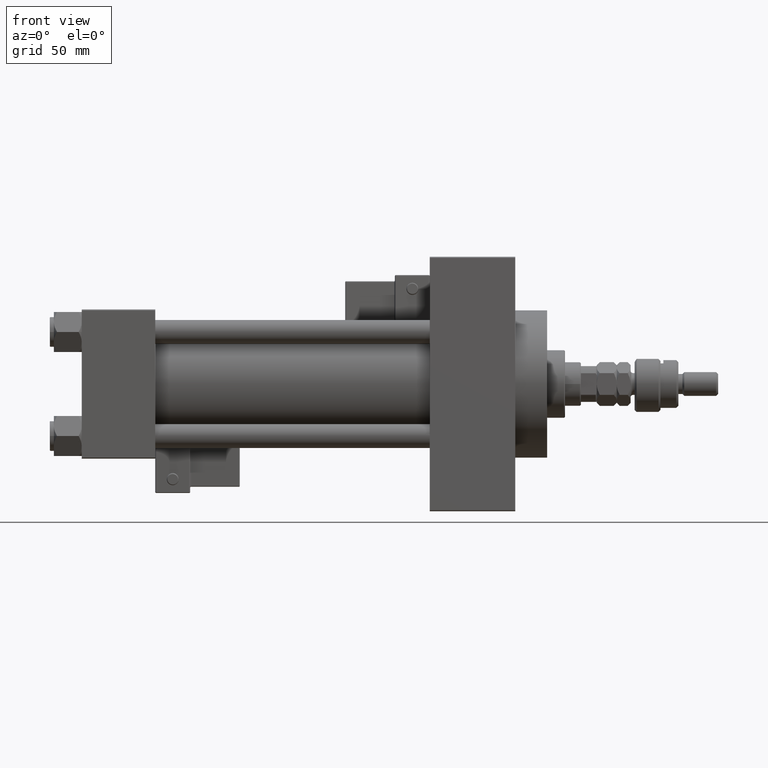
[diagram: clean part render]
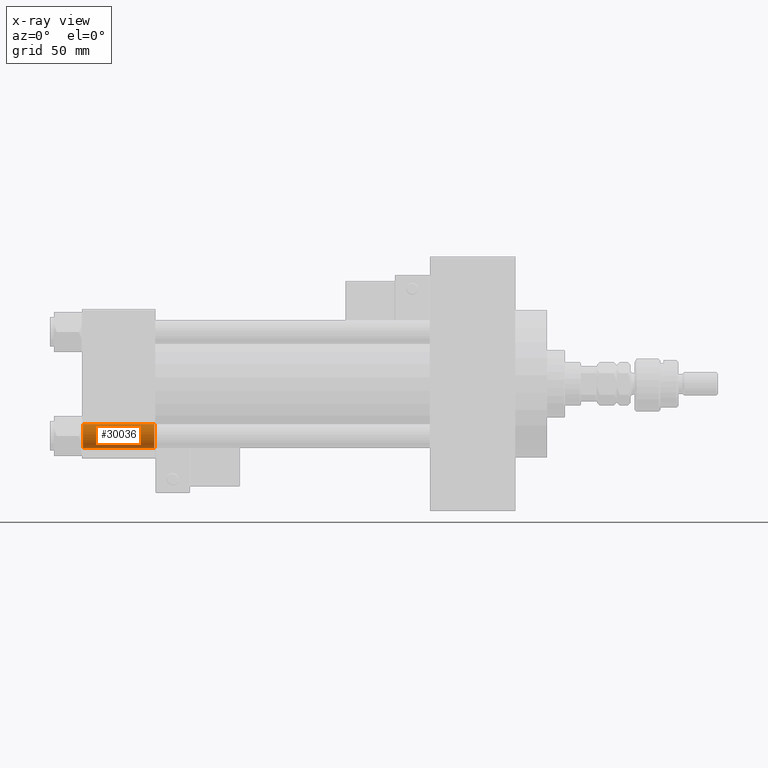
[diagram: x-ray — body ghosted, one internal face saturated and labeled with its STEP entity id]
A machine part, front view, then the same camera in x-ray: the body is ghosted and one INTERNAL B-rep face — a face not visible from any outside direction — is saturated and labeled: STEP entity #30036.
In plain terms, the highlighted cylindrical surface (edge-blend (fillet) strip) has radius 6 mm, axis along (-1, -0, -0).
Its self-contained STEP definition (entity closure, byte-faithful):
#1450 = AXIS2_PLACEMENT_3D ( 'NONE', #16453, #12218, #3464 ) ;
#2177 = AXIS2_PLACEMENT_3D ( 'NONE', #41709, #50196, #17059 ) ;
#3464 = DIRECTION ( 'NONE',  ( 0.000000000000000000, 0.000000000000000000, 1.000000000000000000 ) ) ;
#4819 = CIRCLE ( 'NONE', #1450, 6.000000000000001776 ) ;
#7270 = CIRCLE ( 'NONE', #2177, 6.000000000000001776 ) ;
#9847 = CYLINDRICAL_SURFACE ( 'NONE', #43773, 6.000000000000001776 ) ;
#11173 = DIRECTION ( 'NONE',  ( -1.000000000000000000, -0.000000000000000000, -0.000000000000000000 ) ) ;
#11768 = CARTESIAN_POINT ( 'NONE',  ( 0.5000000000000213163, 26.14999999999999858, -32.15000000000000568 ) ) ;
#12218 = DIRECTION ( 'NONE',  ( -1.000000000000000000, 0.000000000000000000, 0.000000000000000000 ) ) ;
#15097 = EDGE_LOOP ( 'NONE', ( #23826, #37031, #15108, #51021 ) ) ;
#15108 = ORIENTED_EDGE ( 'NONE', *, *, #30209, .T. ) ;
#16449 = VERTEX_POINT ( 'NONE', #50597 ) ;
#16453 = CARTESIAN_POINT ( 'NONE',  ( 0.5000000000000213163, 26.14999999999999858, -26.15000000000000213 ) ) ;
#17008 = CARTESIAN_POINT ( 'NONE',  ( 37.00000000000000711, 26.14999999999999858, -20.15000000000000213 ) ) ;
#17059 = DIRECTION ( 'NONE',  ( 0.000000000000000000, 0.000000000000000000, 1.000000000000000000 ) ) ;
#18420 = CARTESIAN_POINT ( 'NONE',  ( 36.50000000000003553, 26.14999999999999858, -32.15000000000000568 ) ) ;
#20910 = VERTEX_POINT ( 'NONE', #43576 ) ;
#22573 = DIRECTION ( 'NONE',  ( 0.000000000000000000, 0.000000000000000000, 1.000000000000000000 ) ) ;
#23826 = ORIENTED_EDGE ( 'NONE', *, *, #52365, .T. ) ;
#26060 = DIRECTION ( 'NONE',  ( -1.000000000000000000, -0.000000000000000000, -0.000000000000000000 ) ) ;
#26858 = LINE ( 'NONE', #34845, #42690 ) ;
#29835 = VERTEX_POINT ( 'NONE', #11768 ) ;
#30036 = ADVANCED_FACE ( 'NONE', ( #46194 ), #9847, .F. ) ;
#30209 = EDGE_CURVE ( 'NONE', #29835, #20910, #4819, .T. ) ;
#32433 = LINE ( 'NONE', #17008, #33496 ) ;
#33229 = DIRECTION ( 'NONE',  ( -1.000000000000000000, -0.000000000000000000, -0.000000000000000000 ) ) ;
#33496 = VECTOR ( 'NONE', #33229, 1000.000000000000000 ) ;
#34845 = CARTESIAN_POINT ( 'NONE',  ( 37.00000000000000711, 26.14999999999999858, -32.15000000000000568 ) ) ;
#35063 = CARTESIAN_POINT ( 'NONE',  ( 37.00000000000000711, 26.14999999999999858, -26.15000000000000213 ) ) ;
#37031 = ORIENTED_EDGE ( 'NONE', *, *, #48520, .T. ) ;
#41709 = CARTESIAN_POINT ( 'NONE',  ( 36.50000000000003553, 26.14999999999999858, -26.15000000000000213 ) ) ;
#42690 = VECTOR ( 'NONE', #26060, 1000.000000000000000 ) ;
#43576 = CARTESIAN_POINT ( 'NONE',  ( 0.5000000000000213163, 26.14999999999999858, -20.15000000000000213 ) ) ;
#43773 = AXIS2_PLACEMENT_3D ( 'NONE', #35063, #11173, #22573 ) ;
#46194 = FACE_OUTER_BOUND ( 'NONE', #15097, .T. ) ;
#48520 = EDGE_CURVE ( 'NONE', #49331, #29835, #26858, .T. ) ;
#49331 = VERTEX_POINT ( 'NONE', #18420 ) ;
#50196 = DIRECTION ( 'NONE',  ( 1.000000000000000000, -0.000000000000000000, -0.000000000000000000 ) ) ;
#50597 = CARTESIAN_POINT ( 'NONE',  ( 36.50000000000003553, 26.14999999999999858, -20.15000000000000213 ) ) ;
#50639 = EDGE_CURVE ( 'NONE', #16449, #20910, #32433, .T. ) ;
#51021 = ORIENTED_EDGE ( 'NONE', *, *, #50639, .F. ) ;
#52365 = EDGE_CURVE ( 'NONE', #16449, #49331, #7270, .T. ) ;